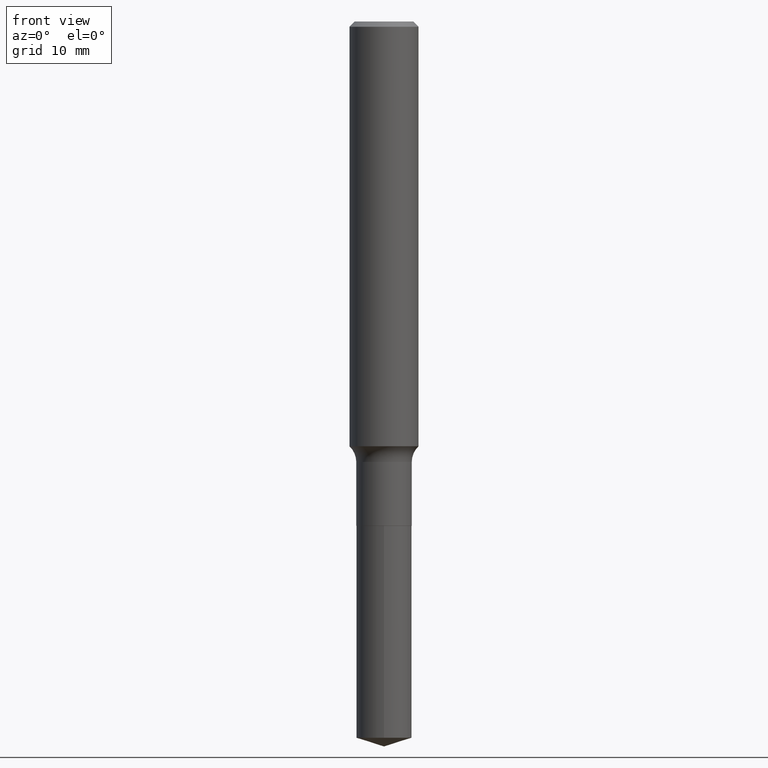
[diagram: clean part render]
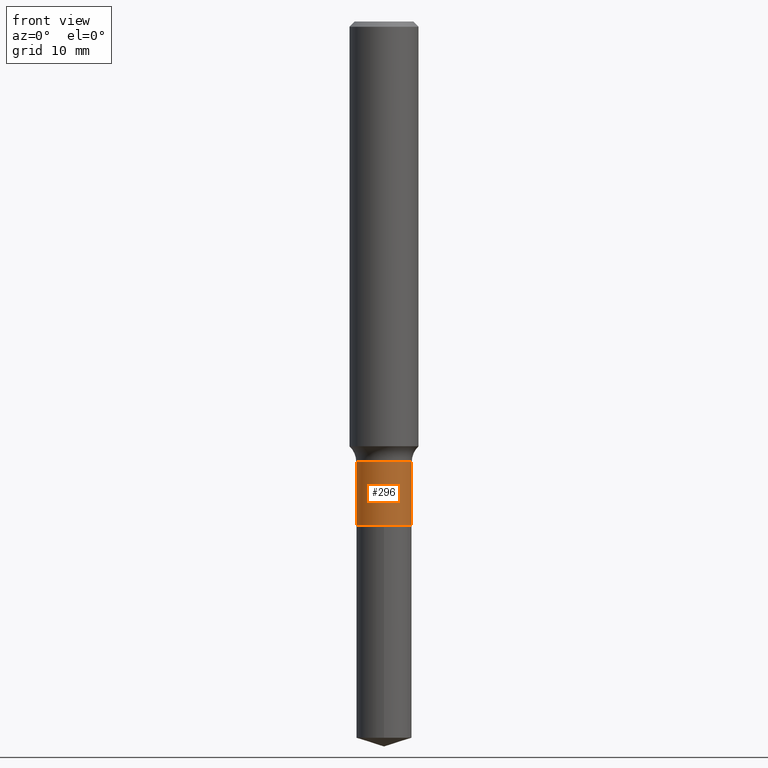
[diagram: same view with one face highlighted and labeled with its STEP entity id]
A machine part, front view. The second image highlights one B-rep face of the part: STEP entity #296.
In plain terms, the highlighted cylindrical surface (edge-blend (fillet) strip) has radius 2.5527 mm, axis along (-0, 0, 1).
Its self-contained STEP definition (entity closure, byte-faithful):
#25 = DIRECTION ( 'NONE',  ( -2.445468806185136877E-29, 3.491481338843145188E-15, 1.000000000000000000 ) ) ;
#33 = CARTESIAN_POINT ( 'NONE',  ( 0.1004999999999999782, -6.270002188294518342E-15, -1.594800000000000217 ) ) ;
#37 = DIRECTION ( 'NONE',  ( 1.000000000000000000, -6.982962677686261977E-15, 0.000000000000000000 ) ) ;
#41 = VERTEX_POINT ( 'NONE', #492 ) ;
#42 = DIRECTION ( 'NONE',  ( -2.445468806185136597E-29, 3.491481338843145583E-15, 1.000000000000000000 ) ) ;
#94 = LINE ( 'NONE', #142, #389 ) ;
#106 = LINE ( 'NONE', #270, #405 ) ;
#110 = DIRECTION ( 'NONE',  ( 1.000000000000000000, -6.982962677686266711E-15, 4.876176775795935793E-29 ) ) ;
#113 = DIRECTION ( 'NONE',  ( -2.445468806185136597E-29, 3.491481338843145583E-15, 1.000000000000000000 ) ) ;
#114 = VERTEX_POINT ( 'NONE', #33 ) ;
#128 = CARTESIAN_POINT ( 'NONE',  ( 0.1005000000000000338, -7.075486933165632432E-15, -1.825500000000000345 ) ) ;
#142 = CARTESIAN_POINT ( 'NONE',  ( 0.1004999999999999921, -7.017877491074697768E-16, 4.900557659674914995E-30 ) ) ;
#147 = CARTESIAN_POINT ( 'NONE',  ( 3.900033652104055886E-29, -5.568214439187049453E-15, -1.594800000000000217 ) ) ;
#151 = CARTESIAN_POINT ( 'NONE',  ( 4.464203305690967315E-29, -6.373699184058162754E-15, -1.825500000000000345 ) ) ;
#176 = EDGE_CURVE ( 'NONE', #434, #114, #94, .T. ) ;
#190 = CYLINDRICAL_SURFACE ( 'NONE', #356, 0.1004999999999999921 ) ;
#194 = ORIENTED_EDGE ( 'NONE', *, *, #340, .F. ) ;
#206 = CIRCLE ( 'NONE', #342, 0.1004999999999999782 ) ;
#207 = AXIS2_PLACEMENT_3D ( 'NONE', #151, #42, #423 ) ;
#209 = VERTEX_POINT ( 'NONE', #346 ) ;
#225 = CARTESIAN_POINT ( 'NONE',  ( 0.000000000000000000, 0.000000000000000000, 0.000000000000000000 ) ) ;
#234 = FACE_OUTER_BOUND ( 'NONE', #286, .T. ) ;
#261 = EDGE_CURVE ( 'NONE', #41, #434, #421, .T. ) ;
#270 = CARTESIAN_POINT ( 'NONE',  ( -0.1004999999999999921, 7.140954494389006308E-16, -4.943529765706180112E-30 ) ) ;
#286 = EDGE_LOOP ( 'NONE', ( #315, #320, #451, #194 ) ) ;
#296 = ADVANCED_FACE ( 'NONE', ( #234 ), #190, .T. ) ;
#314 = DIRECTION ( 'NONE',  ( -2.445468806185136597E-29, 3.491481338843145583E-15, 1.000000000000000000 ) ) ;
#315 = ORIENTED_EDGE ( 'NONE', *, *, #359, .F. ) ;
#320 = ORIENTED_EDGE ( 'NONE', *, *, #261, .T. ) ;
#340 = EDGE_CURVE ( 'NONE', #209, #114, #206, .T. ) ;
#342 = AXIS2_PLACEMENT_3D ( 'NONE', #147, #314, #37 ) ;
#346 = CARTESIAN_POINT ( 'NONE',  ( -0.1004999999999999782, -5.256861362183704782E-15, -1.594800000000000217 ) ) ;
#356 = AXIS2_PLACEMENT_3D ( 'NONE', #225, #113, #110 ) ;
#359 = EDGE_CURVE ( 'NONE', #41, #209, #106, .T. ) ;
#389 = VECTOR ( 'NONE', #25, 39.37007874015748143 ) ;
#405 = VECTOR ( 'NONE', #414, 39.37007874015748143 ) ;
#414 = DIRECTION ( 'NONE',  ( -2.445468806185136877E-29, 3.491481338843145188E-15, 1.000000000000000000 ) ) ;
#421 = CIRCLE ( 'NONE', #207, 0.1005000000000000338 ) ;
#423 = DIRECTION ( 'NONE',  ( 1.000000000000000000, -6.982962677686268288E-15, 0.000000000000000000 ) ) ;
#434 = VERTEX_POINT ( 'NONE', #128 ) ;
#451 = ORIENTED_EDGE ( 'NONE', *, *, #176, .T. ) ;
#492 = CARTESIAN_POINT ( 'NONE',  ( -0.1005000000000000476, -5.256861362183703993E-15, -1.825500000000000345 ) ) ;